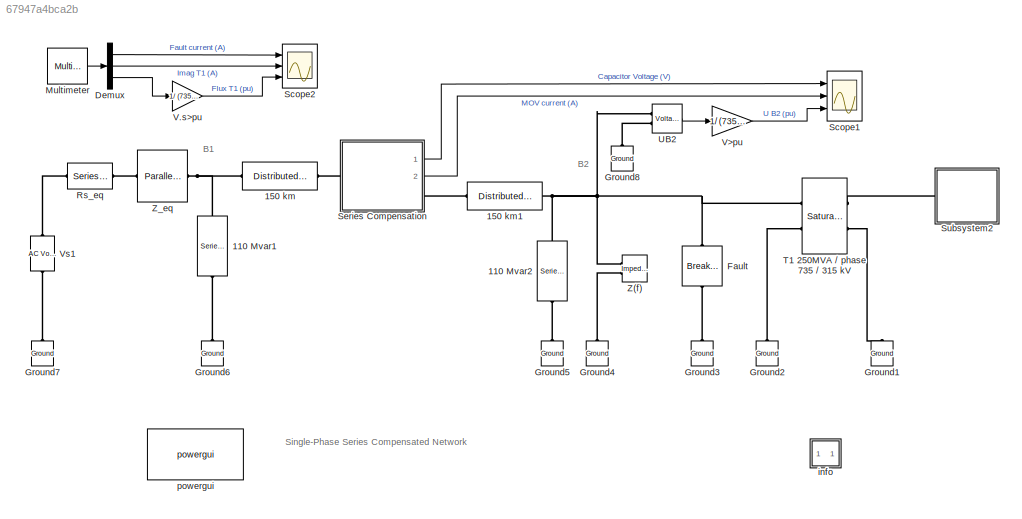
MODEL slx_67947a4bca2b
KIND model
CONFIG AbsTol = auto
CONFIG EnableMultiTasking = off
CONFIG FixedStep = auto
CONFIG MaxStep = auto
CONFIG MinStep = auto
CONFIG RelTol = 1e-4
CONFIG SampleTimeConstraint = Unconstrained
CONFIG Solver = ode23tb
CONFIG SolverName = ode23tb
CONFIG StartTime = 0.0
CONFIG StopTime = 0.4
BLOCK [Reference] 110 Mvar1  REF=powerlib/Elements/Series RLC Load
  AttributesFormatString = \n
  Ports = [0, 0, 0, 0, 0, 1, 1]
  SourceBlock = powerlib/Elements/Series RLC Load
  SourceProductBaseCode = PS
  SourceProductName = Simscape Power Systems
  SourceType = Series RLC Load
BLOCK [Reference] 110 Mvar2  REF=powerlib/Elements/Series RLC Load
  AttributesFormatString = \n
  Ports = [0, 0, 0, 0, 0, 1, 1]
  SourceBlock = powerlib/Elements/Series RLC Load
  SourceProductBaseCode = PS
  SourceProductName = Simscape Power Systems
  SourceType = Series RLC Load
BLOCK [Reference] 150 km  REF=powerlib/Elements/Distributed Parameters Line
  AttributesFormatString = \n
  Ports = [0, 0, 0, 0, 0, 1, 1]
  SourceBlock = powerlib/Elements/Distributed Parameters Line
  SourceProductBaseCode = PS
  SourceProductName = Simscape Power Systems
  SourceType = Distributed Parameters Line
BLOCK [Reference] 150 km1  REF=powerlib/Elements/Distributed Parameters Line
  AttributesFormatString = \n
  Ports = [0, 0, 0, 0, 0, 1, 1]
  SourceBlock = powerlib/Elements/Distributed Parameters Line
  SourceProductBaseCode = PS
  SourceProductName = Simscape Power Systems
  SourceType = Distributed Parameters Line
BLOCK [Demux] Demux
  Outputs = 3
  Ports = [1, 3]
BLOCK [Reference] Fault  REF=powerlib/Elements/Breaker
  AttributesFormatString = \n
  Ports = [0, 0, 0, 0, 0, 1, 1]
  SourceBlock = powerlib/Elements/Breaker
  SourceProductBaseCode = PS
  SourceProductName = Simscape Power Systems
  SourceType = Breaker
BLOCK [Reference] Ground1  REF=powerlib/Elements/Ground
  AttributesFormatString = \n
  Ports = [0, 0, 0, 0, 0, 1]
  SourceBlock = powerlib/Elements/Ground
  SourceProductBaseCode = PS
  SourceProductName = Simscape Power Systems
  SourceType = Ground
BLOCK [Reference] Ground2  REF=powerlib/Elements/Ground
  AttributesFormatString = \n
  Ports = [0, 0, 0, 0, 0, 1]
  SourceBlock = powerlib/Elements/Ground
  SourceProductBaseCode = PS
  SourceProductName = Simscape Power Systems
  SourceType = Ground
BLOCK [Reference] Ground3  REF=powerlib/Elements/Ground
  AttributesFormatString = \n
  Ports = [0, 0, 0, 0, 0, 1]
  SourceBlock = powerlib/Elements/Ground
  SourceProductBaseCode = PS
  SourceProductName = Simscape Power Systems
  SourceType = Ground
BLOCK [Reference] Ground4  REF=powerlib/Elements/Ground
  AttributesFormatString = \n
  Ports = [0, 0, 0, 0, 0, 1]
  SourceBlock = powerlib/Elements/Ground
  SourceProductBaseCode = PS
  SourceProductName = Simscape Power Systems
  SourceType = Ground
BLOCK [Reference] Ground5  REF=powerlib/Elements/Ground
  AttributesFormatString = \n
  Ports = [0, 0, 0, 0, 0, 1]
  SourceBlock = powerlib/Elements/Ground
  SourceProductBaseCode = PS
  SourceProductName = Simscape Power Systems
  SourceType = Ground
BLOCK [Reference] Ground6  REF=powerlib/Elements/Ground
  AttributesFormatString = \n
  Ports = [0, 0, 0, 0, 0, 1]
  SourceBlock = powerlib/Elements/Ground
  SourceProductBaseCode = PS
  SourceProductName = Simscape Power Systems
  SourceType = Ground
BLOCK [Reference] Ground7  REF=powerlib/Elements/Ground
  AttributesFormatString = \n
  Ports = [0, 0, 0, 0, 0, 1]
  SourceBlock = powerlib/Elements/Ground
  SourceProductBaseCode = PS
  SourceProductName = Simscape Power Systems
  SourceType = Ground
BLOCK [Reference] Ground8  REF=powerlib/Elements/Ground
  AttributesFormatString = \n
  Ports = [0, 0, 0, 0, 0, 1]
  SourceBlock = powerlib/Elements/Ground
  SourceProductBaseCode = PS
  SourceProductName = Simscape Power Systems
  SourceType = Ground
BLOCK [Reference] Multimeter  REF=powerlib/Measurements/Multimeter
  AttributesFormatString = \n
  Ports = [0, 1]
  SourceBlock = powerlib/Measurements/Multimeter
  SourceProductBaseCode = PS
  SourceProductName = Simscape Power Systems
  SourceType = MultimeterPSB
  Tag = PoWeRsYsTeMmEaSuReMeNt
BLOCK [Reference] Rs_eq  REF=powerlib/Elements/Series RLC Branch
  AttributesFormatString = \n
  Ports = [0, 0, 0, 0, 0, 1, 1]
  SourceBlock = powerlib/Elements/Series RLC Branch
  SourceProductBaseCode = PS
  SourceProductName = Simscape Power Systems
  SourceType = Series RLC Branch
BLOCK [Scope] Scope1
  Floating = off
  NumInputPorts = 3
  Ports = [3]
  ScopeSpecificationString = Simulink.scopes.TimeScopeBlockCfg('CurrentConfiguration', extmgr.ConfigurationSet(extmgr.Configuration('Core','General UI',true),extmgr.Configuration('Core','Source UI',true),extmgr.Configuration('Sources','WiredSimulink',true,'DataLoggingSaveFormat','Array','DataLoggingDecimation','1','DataLoggingDecimateData',true),extmgr.Configuration('Visuals','Time Domain',true,'SerializedDisplays',{struct('M...<+3072ch>
BLOCK [Scope] Scope2
  Floating = off
  NumInputPorts = 3
  Ports = [3]
  ScopeSpecificationString = Simulink.scopes.TimeScopeBlockCfg('CurrentConfiguration', extmgr.ConfigurationSet(extmgr.Configuration('Core','General UI',true),extmgr.Configuration('Core','Source UI',true),extmgr.Configuration('Sources','WiredSimulink',true,'DataLoggingSaveFormat','Array','DataLoggingDecimation','1','DataLoggingDecimateData',true),extmgr.Configuration('Visuals','Time Domain',true,'SerializedDisplays',{struct('M...<+3061ch>
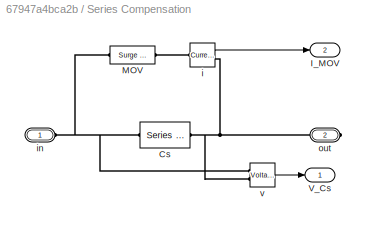
BLOCK [SubSystem] Series Compensation
  Ports = [0, 2, 0, 0, 0, 1, 1]
  RequestExecContextInheritance = off
BLOCK [Reference] Series Compensation/Cs  REF=powerlib/Elements/Series RLC Branch
  AttributesFormatString = \n
  Ports = [0, 0, 0, 0, 0, 1, 1]
  SourceBlock = powerlib/Elements/Series RLC Branch
  SourceProductBaseCode = PS
  SourceProductName = Simscape Power Systems
  SourceType = Series RLC Branch
BLOCK [Outport] Series Compensation/I_MOV
  IconDisplay = Port number
  Port = 2
BLOCK [Reference] Series Compensation/MOV  REF=powerlib/Elements/Surge Arrester
  AttributesFormatString = \n
  Ports = [0, 0, 0, 0, 0, 1, 1]
  SourceBlock = powerlib/Elements/Surge Arrester
  SourceProductBaseCode = PS
  SourceProductName = Simscape Power Systems
  SourceType = Surge Arrester
BLOCK [Outport] Series Compensation/V_Cs
  IconDisplay = Port number
BLOCK [Reference] Series Compensation/i  REF=powerlib/Measurements/Current Measurement
  AttributesFormatString = \n
  Ports = [0, 1, 0, 0, 0, 1, 1]
  SourceBlock = powerlib/Measurements/Current Measurement
  SourceProductBaseCode = PS
  SourceProductName = Simscape Power Systems
  SourceType = Current Measurement
  Tag = PoWeRsYsTeMmEaSuReMeNt
BLOCK [PMIOPort] Series Compensation/in
  Side = Left
BLOCK [PMIOPort] Series Compensation/out
  Port = 2
  Side = Right
BLOCK [Reference] Series Compensation/v  REF=powerlib/Measurements/Voltage Measurement
  AttributesFormatString = \n
  Ports = [0, 1, 0, 0, 0, 2]
  SourceBlock = powerlib/Measurements/Voltage Measurement
  SourceProductBaseCode = PS
  SourceProductName = Simscape Power Systems
  SourceType = Voltage Measurement
  Tag = PoWeRsYsTeMmEaSuReMeNt
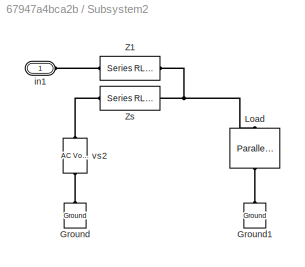
BLOCK [SubSystem] Subsystem2
  Ports = [0, 0, 0, 0, 0, 1]
  RequestExecContextInheritance = off
BLOCK [Reference] Subsystem2/Ground  REF=powerlib/Elements/Ground
  AttributesFormatString = \n
  Ports = [0, 0, 0, 0, 0, 1]
  SourceBlock = powerlib/Elements/Ground
  SourceProductBaseCode = PS
  SourceProductName = Simscape Power Systems
  SourceType = Ground
BLOCK [Reference] Subsystem2/Ground1  REF=powerlib/Elements/Ground
  AttributesFormatString = \n
  Ports = [0, 0, 0, 0, 0, 1]
  SourceBlock = powerlib/Elements/Ground
  SourceProductBaseCode = PS
  SourceProductName = Simscape Power Systems
  SourceType = Ground
BLOCK [Reference] Subsystem2/Load  REF=powerlib/Elements/Parallel RLC Load
  AttributesFormatString = \n
  Ports = [0, 0, 0, 0, 0, 1, 1]
  SourceBlock = powerlib/Elements/Parallel RLC Load
  SourceProductBaseCode = PS
  SourceProductName = Simscape Power Systems
  SourceType = Parallel RLC Load
BLOCK [Reference] Subsystem2/Z1  REF=powerlib/Elements/Series RLC Branch
  AttributesFormatString = \n
  Ports = [0, 0, 0, 0, 0, 1, 1]
  SourceBlock = powerlib/Elements/Series RLC Branch
  SourceProductBaseCode = PS
  SourceProductName = Simscape Power Systems
  SourceType = Series RLC Branch
BLOCK [Reference] Subsystem2/Zs  REF=powerlib/Elements/Series RLC Branch
  AttributesFormatString = \n
  Ports = [0, 0, 0, 0, 0, 1, 1]
  SourceBlock = powerlib/Elements/Series RLC Branch
  SourceProductBaseCode = PS
  SourceProductName = Simscape Power Systems
  SourceType = Series RLC Branch
BLOCK [PMIOPort] Subsystem2/in1
  Side = Left
BLOCK [Reference] Subsystem2/vs2  REF=powerlib/Electrical
Sources/AC Voltage Source
  AttributesFormatString = \n
  Description = source block
  Ports = [0, 0, 0, 0, 0, 1, 1]
  SourceBlock = powerlib/Electrical\nSources/AC Voltage Source
  SourceProductBaseCode = PS
  SourceProductName = Simscape Power Systems
  SourceType = AC Voltage Source
BLOCK [Reference] T1 250MVA // phase 735 // 315 kV  REF=powerlib/Elements/Saturable Transformer
  AttributesFormatString = \n
  Ports = [0, 0, 0, 0, 0, 2, 2]
  SourceBlock = powerlib/Elements/Saturable Transformer
  SourceProductBaseCode = PS
  SourceProductName = Simscape Power Systems
  SourceType = Saturable Transformer
BLOCK [Reference] UB2  REF=powerlib/Measurements/Voltage Measurement
  AttributesFormatString = \n
  Ports = [0, 1, 0, 0, 0, 2]
  SourceBlock = powerlib/Measurements/Voltage Measurement
  SourceProductBaseCode = PS
  SourceProductName = Simscape Power Systems
  SourceType = Voltage Measurement
  Tag = PoWeRsYsTeMmEaSuReMeNt
BLOCK [Gain] V.s>pu
  Gain = 1/ (735e3/sqrt(3)*sqrt(2)/(2*pi*60))
BLOCK [Gain] V>pu
  Gain = 1/ (735e3/sqrt(3)*sqrt(2))
BLOCK [Reference] Vs1  REF=powerlib/Electrical
Sources/AC Voltage Source
  AttributesFormatString = \n
  Description = source block
  Ports = [0, 0, 0, 0, 0, 1, 1]
  SourceBlock = powerlib/Electrical\nSources/AC Voltage Source
  SourceProductBaseCode = PS
  SourceProductName = Simscape Power Systems
  SourceType = AC Voltage Source
BLOCK [Reference] Z(f)  REF=powerlib/Measurements/Impedance Measurement
  AttributesFormatString = \n
  Ports = [0, 0, 0, 0, 0, 2]
  SourceBlock = powerlib/Measurements/Impedance Measurement
  SourceProductBaseCode = PS
  SourceProductName = Simscape Power Systems
  SourceType = Impedance Measurement
BLOCK [Reference] Z_eq  REF=powerlib/Elements/Parallel RLC Branch
  AttributesFormatString = \n
  Ports = [0, 0, 0, 0, 0, 1, 1]
  SourceBlock = powerlib/Elements/Parallel RLC Branch
  SourceProductBaseCode = PS
  SourceProductName = Simscape Power Systems
  SourceType = Parallel RLC Branch
BLOCK [SubSystem] info
  OpenFcn = showdemo(bdroot(gcb))
  Ports = []
  RequestExecContextInheritance = off
BLOCK [Reference] powergui  REF=powerlib/powergui
  Ports = []
  Priority = 2
  SourceBlock = powerlib/powergui
  SourceProductBaseCode = PS
  SourceProductName = Simscape Power Systems
  SourceType = PSB option menu block
ANNOTATION (root): B1
ANNOTATION (root): B2
ANNOTATION (root): Single-Phase Series Compensated Network
LINE Demux:1 -> Scope2:1
LINE Demux:2 -> Scope2:2
LINE Demux:3 -> V.s>pu:1
LINE Multimeter:1 -> Demux:1
LINE Series Compensation/i:1 -> Series Compensation/I_MOV:1
LINE Series Compensation/v:1 -> Series Compensation/V_Cs:1
LINE Series Compensation:1 -> Scope1:1
LINE Series Compensation:2 -> Scope1:2
LINE UB2:1 -> V>pu:1
LINE V.s>pu:1 -> Scope2:3
LINE V>pu:1 -> Scope1:3
PLINE 110 Mvar1:LConn1 -- Ground6:LConn1
PNET net1: 110 Mvar1:RConn1 -- 150 km:LConn1 -- Z_eq:RConn1
PLINE 110 Mvar2:LConn1 -- Ground5:LConn1
PNET net2: 110 Mvar2:RConn1 -- 150 km1:RConn1 -- Fault:LConn1 -- T1 250MVA // phase 735 // 315 kV:LConn1 -- UB2:LConn1 -- Z(f):LConn1
PLINE 150 km1:LConn1 -- Series Compensation:RConn1
PLINE 150 km:RConn1 -- Series Compensation:LConn1
PLINE Fault:RConn1 -- Ground3:LConn1
PLINE Ground1:LConn1 -- T1 250MVA // phase 735 // 315 kV:RConn2
PLINE Ground2:LConn1 -- T1 250MVA // phase 735 // 315 kV:LConn2
PLINE Ground4:LConn1 -- Z(f):LConn2
PLINE Ground7:LConn1 -- Vs1:LConn1
PLINE Ground8:LConn1 -- UB2:LConn2
PLINE Rs_eq:LConn1 -- Vs1:RConn1
PLINE Rs_eq:RConn1 -- Z_eq:LConn1
PNET net3: Series Compensation/Cs:LConn1 -- Series Compensation/MOV:LConn1 -- Series Compensation/in:RConn1 -- Series Compensation/v:LConn1
PNET net4: Series Compensation/Cs:RConn1 -- Series Compensation/i:RConn1 -- Series Compensation/out:RConn1 -- Series Compensation/v:LConn2
PLINE Series Compensation/MOV:RConn1 -- Series Compensation/i:LConn1
PLINE Subsystem2/Ground1:LConn1 -- Subsystem2/Load:RConn1
PLINE Subsystem2/Ground:LConn1 -- Subsystem2/vs2:LConn1
PNET net5: Subsystem2/Load:LConn1 -- Subsystem2/Z1:RConn1 -- Subsystem2/Zs:RConn1
PLINE Subsystem2/Z1:LConn1 -- Subsystem2/in1:RConn1
PLINE Subsystem2/Zs:LConn1 -- Subsystem2/vs2:RConn1
PLINE Subsystem2:LConn1 -- T1 250MVA // phase 735 // 315 kV:RConn1
note: PNET lines group multi-terminal physical nets as a canonical sorted terminal list (undirected conserving connections); 2-terminal nets keep the pairwise PLINE form
